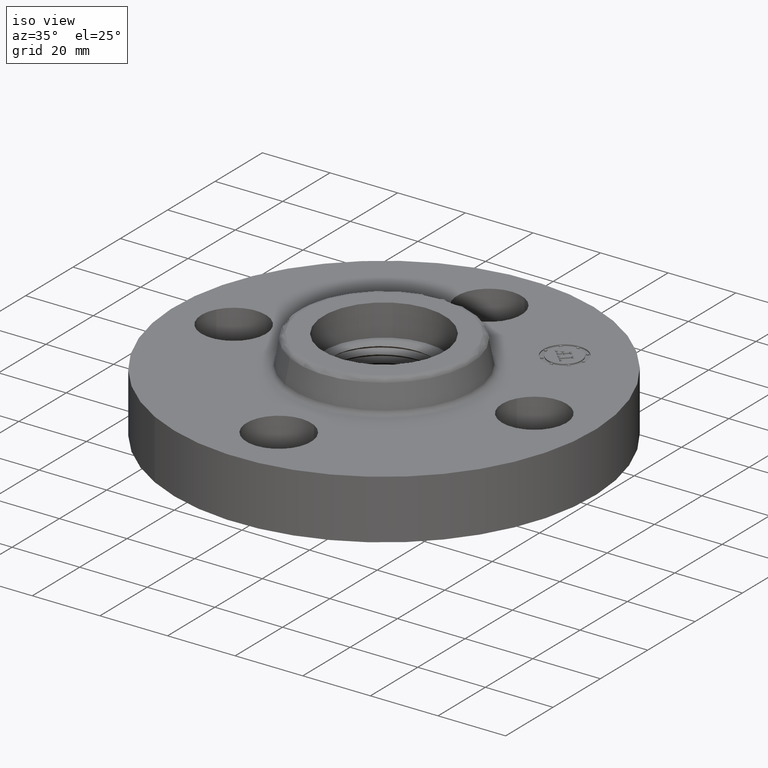
[diagram: clean part render]
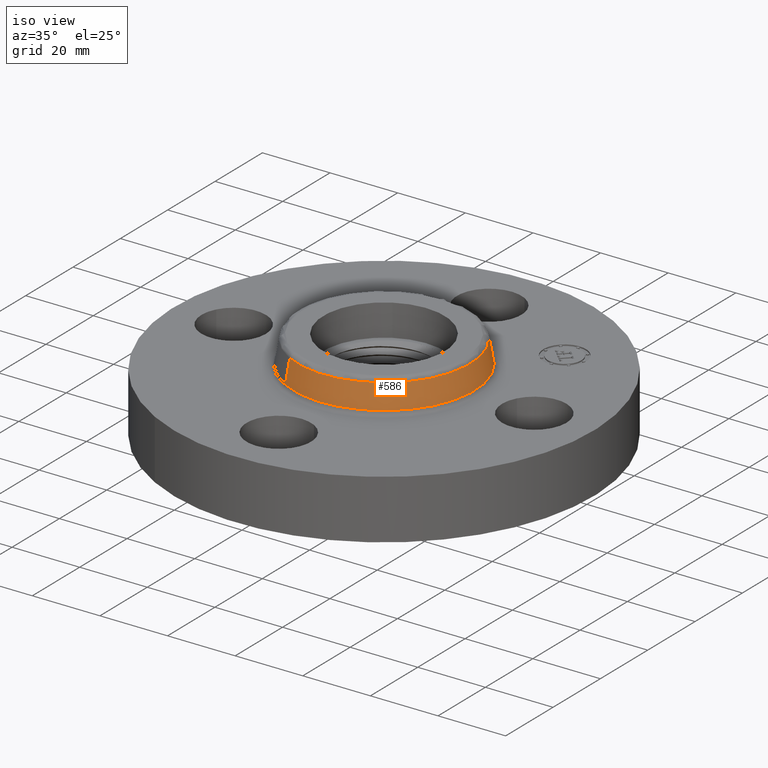
[diagram: same view with one face highlighted and labeled with its STEP entity id]
A machine part, iso view. The second image highlights one B-rep face of the part: STEP entity #586.
In plain terms, the highlighted conical surface has half-angle 10 deg.
Its self-contained STEP definition (entity closure, byte-faithful):
#522=AXIS2_PLACEMENT_3D('Circle Axis2P3D',#520,#521,$) ;
#559=AXIS2_PLACEMENT_3D('Cone Axis2P3D',#556,#557,#558) ;
#570=AXIS2_PLACEMENT_3D('Circle Axis2P3D',#568,#569,$) ;
#517=CARTESIAN_POINT('Vertex',(0.503999699235,0.922565261197,0.739581109343)) ;
#520=CARTESIAN_POINT('Axis2P3D Location',(0.,0.,0.739581109343)) ;
#524=CARTESIAN_POINT('Vertex',(-0.503999699235,-0.922565261197,0.739581109343)) ;
#556=CARTESIAN_POINT('Axis2P3D Location',(0.,0.,1.01041889066)) ;
#561=CARTESIAN_POINT('Line Origine',(0.492551974249,0.901610341167,0.875000000004)) ;
#565=CARTESIAN_POINT('Vertex',(0.481104249262,0.880655421138,1.01041889066)) ;
#568=CARTESIAN_POINT('Axis2P3D Location',(0.,0.,1.01041889066)) ;
#572=CARTESIAN_POINT('Vertex',(-0.481104249262,-0.880655421138,1.01041889066)) ;
#575=CARTESIAN_POINT('Line Origine',(-0.492551974249,-0.901610341167,0.875000000004)) ;
#521=DIRECTION('Axis2P3D Direction',(0.,0.,-0.0393700787402)) ;
#557=DIRECTION('Axis2P3D Direction',(0.,0.,-0.0393700787402)) ;
#558=DIRECTION('Axis2P3D XDirection',(-0.0188750212049,-0.0345504945626,0.)) ;
#562=DIRECTION('Vector Direction',(0.00327761303565,0.00599963041829,-0.03877195878)) ;
#569=DIRECTION('Axis2P3D Direction',(0.,0.,-0.0393700787402)) ;
#576=DIRECTION('Vector Direction',(-0.00327761303565,-0.00599963041829,-0.03877195878)) ;
#563=VECTOR('Line Direction',#562,0.0393700787402) ;
#577=VECTOR('Line Direction',#576,0.0393700787402) ;
#581=ORIENTED_EDGE('',*,*,#526,.F.) ;
#582=ORIENTED_EDGE('',*,*,#567,.T.) ;
#583=ORIENTED_EDGE('',*,*,#574,.T.) ;
#584=ORIENTED_EDGE('',*,*,#579,.F.) ;
#586=ADVANCED_FACE('PartBody',(#585),#560,.T.) ;
#523=CIRCLE('generated circle',#522,1.05125751269) ;
#571=CIRCLE('generated circle',#570,1.00350150445) ;
#560=CONICAL_SURFACE('Cone',#559,1.00350150445,0.174532925199) ;
#526=EDGE_CURVE('',#518,#525,#523,.T.) ;
#567=EDGE_CURVE('',#518,#566,#564,.F.) ;
#574=EDGE_CURVE('',#566,#573,#571,.T.) ;
#579=EDGE_CURVE('',#525,#573,#578,.F.) ;
#580=EDGE_LOOP('',(#581,#582,#583,#584)) ;
#585=FACE_OUTER_BOUND('',#580,.T.) ;
#564=LINE('Line',#561,#563) ;
#578=LINE('Line',#575,#577) ;
#518=VERTEX_POINT('',#517) ;
#525=VERTEX_POINT('',#524) ;
#566=VERTEX_POINT('',#565) ;
#573=VERTEX_POINT('',#572) ;